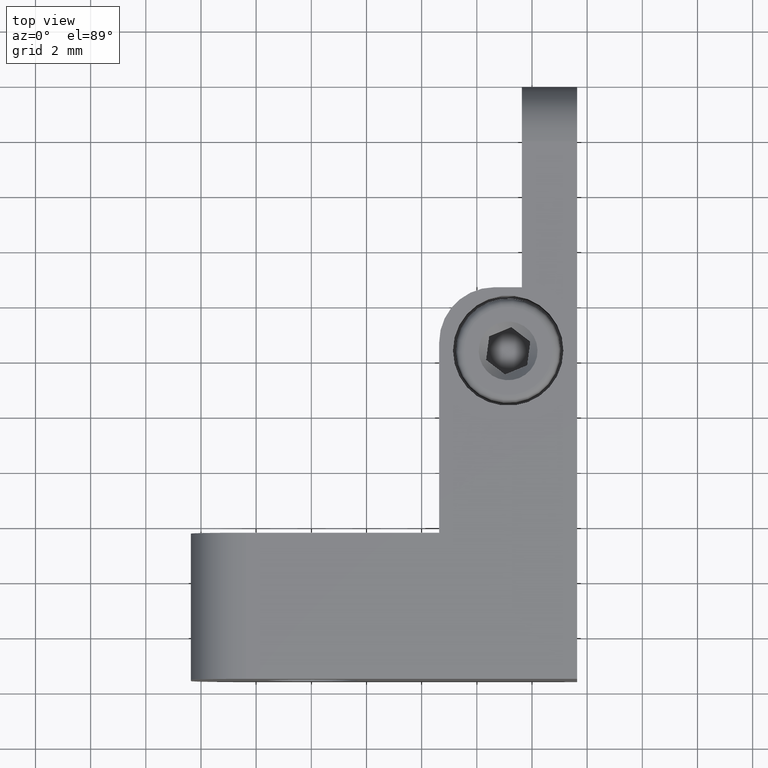
[diagram: clean part render]
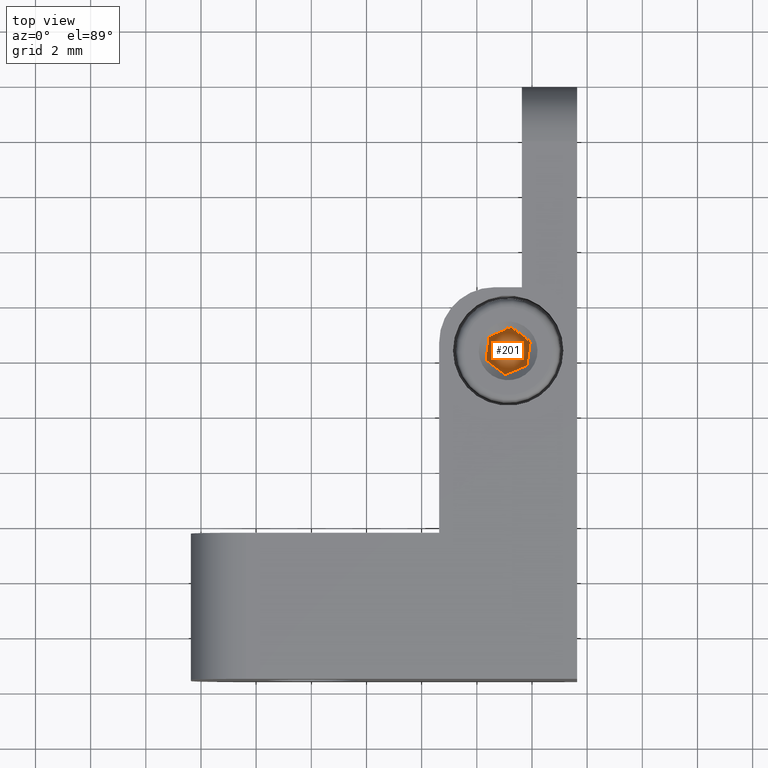
[diagram: same view with one face highlighted and labeled with its STEP entity id]
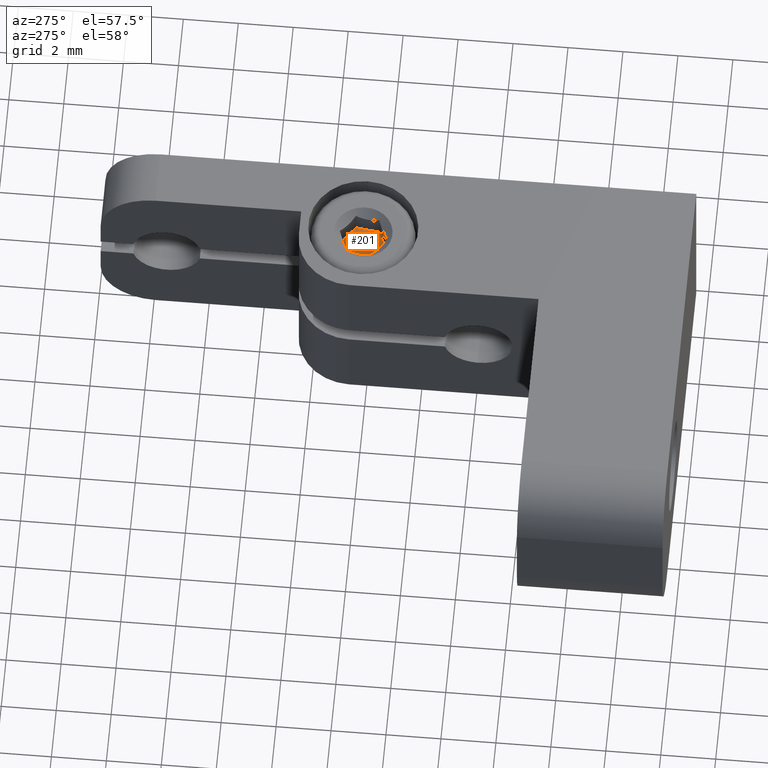
[diagram: same view with one face highlighted and labeled with its STEP entity id]
A machine part, top view. The second image highlights one B-rep face of the part: STEP entity #201.
A second angle (auxiliary view) of the same face is appended — the face is thin or edge-on in the first view.
In plain terms, the highlighted planar face has unit normal (0, 0, 1).
Its self-contained STEP definition (entity closure, byte-faithful):
#79 = DIRECTION ( 'NONE',  ( 1.000000000000000000, 0.000000000000000000, -2.220446049250292373E-16 ) ) ;
#82 = CARTESIAN_POINT ( 'NONE',  ( -0.4330127018922179660, 1.000000000000000888, 0.7500000000000006661 ) ) ;
#132 = CARTESIAN_POINT ( 'NONE',  ( 0.8660254037844687947, 1.000000000000000888, -3.469446951953614189E-14 ) ) ;
#147 = DIRECTION ( 'NONE',  ( 0.5000000000000002220, 0.000000000000000000, 0.8660254037844384856 ) ) ;
#201 = ADVANCED_FACE ( 'NONE', ( #536 ), #874, .T. ) ;
#202 = EDGE_CURVE ( 'NONE', #789, #1376, #1279, .T. ) ;
#286 = CARTESIAN_POINT ( 'NONE',  ( -0.4330127018922109716, 1.000000000000000888, -0.7500000000000179856 ) ) ;
#287 = EDGE_CURVE ( 'NONE', #325, #639, #624, .T. ) ;
#293 = VECTOR ( 'NONE', #594, 1000.000000000000114 ) ;
#296 = CARTESIAN_POINT ( 'NONE',  ( -0.8660254037844393737, 1.000000000000000888, 0.000000000000000000 ) ) ;
#322 = VERTEX_POINT ( 'NONE', #1796 ) ;
#325 = VERTEX_POINT ( 'NONE', #286 ) ;
#416 = LINE ( 'NONE', #1771, #1493 ) ;
#442 = CARTESIAN_POINT ( 'NONE',  ( -0.4330127018922109716, 1.000000000000000888, -0.7500000000000179856 ) ) ;
#513 = ORIENTED_EDGE ( 'NONE', *, *, #1123, .T. ) ;
#536 = FACE_OUTER_BOUND ( 'NONE', #1004, .T. ) ;
#546 = AXIS2_PLACEMENT_3D ( 'NONE', #1540, #708, #1382 ) ;
#566 = LINE ( 'NONE', #1401, #1029 ) ;
#594 = DIRECTION ( 'NONE',  ( 0.5000000000000001110, 0.000000000000000000, -0.8660254037844385966 ) ) ;
#624 = LINE ( 'NONE', #442, #1516 ) ;
#639 = VERTEX_POINT ( 'NONE', #1094 ) ;
#643 = VERTEX_POINT ( 'NONE', #82 ) ;
#708 = DIRECTION ( 'NONE',  ( -0.000000000000000000, 1.000000000000000000, 0.000000000000000000 ) ) ;
#789 = VERTEX_POINT ( 'NONE', #1580 ) ;
#838 = EDGE_CURVE ( 'NONE', #639, #643, #1179, .T. ) ;
#874 = PLANE ( 'NONE',  #546 ) ;
#893 = DIRECTION ( 'NONE',  ( -0.4999999999999996669, 0.000000000000000000, -0.8660254037844388186 ) ) ;
#943 = EDGE_CURVE ( 'NONE', #1376, #322, #1709, .T. ) ;
#986 = ORIENTED_EDGE ( 'NONE', *, *, #287, .T. ) ;
#1004 = EDGE_LOOP ( 'NONE', ( #513, #1127, #1548, #1464, #986, #1781 ) ) ;
#1029 = VECTOR ( 'NONE', #2044, 1000.000000000000000 ) ;
#1061 = CARTESIAN_POINT ( 'NONE',  ( 0.8660254037844687947, 1.000000000000000888, -3.469446951953614189E-14 ) ) ;
#1094 = CARTESIAN_POINT ( 'NONE',  ( -0.8660254037844393737, 1.000000000000000888, 0.000000000000000000 ) ) ;
#1123 = EDGE_CURVE ( 'NONE', #643, #789, #416, .T. ) ;
#1127 = ORIENTED_EDGE ( 'NONE', *, *, #202, .T. ) ;
#1179 = LINE ( 'NONE', #296, #1224 ) ;
#1224 = VECTOR ( 'NONE', #147, 1000.000000000000000 ) ;
#1279 = LINE ( 'NONE', #1933, #293 ) ;
#1376 = VERTEX_POINT ( 'NONE', #132 ) ;
#1382 = DIRECTION ( 'NONE',  ( 5.551115123125734631E-17, 0.000000000000000000, 1.000000000000000000 ) ) ;
#1401 = CARTESIAN_POINT ( 'NONE',  ( 0.4330127018922196869, 1.000000000000000888, -0.7500000000000006661 ) ) ;
#1456 = VECTOR ( 'NONE', #893, 1000.000000000000000 ) ;
#1464 = ORIENTED_EDGE ( 'NONE', *, *, #2028, .T. ) ;
#1493 = VECTOR ( 'NONE', #79, 1000.000000000000000 ) ;
#1516 = VECTOR ( 'NONE', #1582, 1000.000000000000114 ) ;
#1540 = CARTESIAN_POINT ( 'NONE',  ( 0.000000000000000000, 1.000000000000000888, 0.000000000000000000 ) ) ;
#1548 = ORIENTED_EDGE ( 'NONE', *, *, #943, .T. ) ;
#1580 = CARTESIAN_POINT ( 'NONE',  ( 0.4330127018922370064, 1.000000000000000888, 0.7499999999999867883 ) ) ;
#1582 = DIRECTION ( 'NONE',  ( -0.5000000000000001110, 0.000000000000000000, 0.8660254037844385966 ) ) ;
#1709 = LINE ( 'NONE', #1061, #1456 ) ;
#1771 = CARTESIAN_POINT ( 'NONE',  ( -0.4330127018922179660, 1.000000000000000888, 0.7500000000000006661 ) ) ;
#1781 = ORIENTED_EDGE ( 'NONE', *, *, #838, .T. ) ;
#1796 = CARTESIAN_POINT ( 'NONE',  ( 0.4330127018922196869, 1.000000000000000888, -0.7500000000000006661 ) ) ;
#1933 = CARTESIAN_POINT ( 'NONE',  ( 0.4330127018922370064, 1.000000000000000888, 0.7499999999999867883 ) ) ;
#2028 = EDGE_CURVE ( 'NONE', #322, #325, #566, .T. ) ;
#2044 = DIRECTION ( 'NONE',  ( -1.000000000000000000, 0.000000000000000000, -2.775557561562869657E-16 ) ) ;